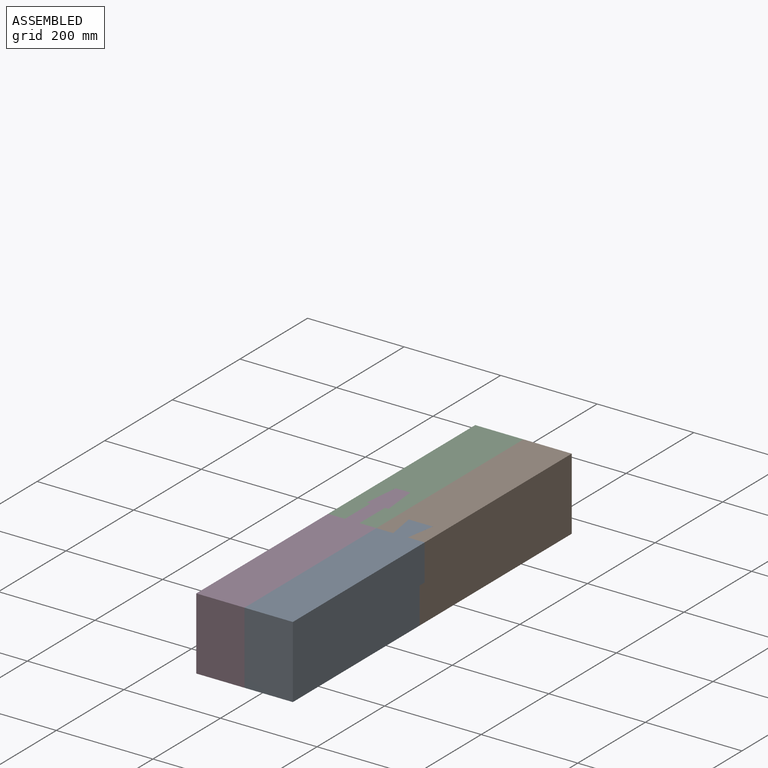
[diagram: assembled view]
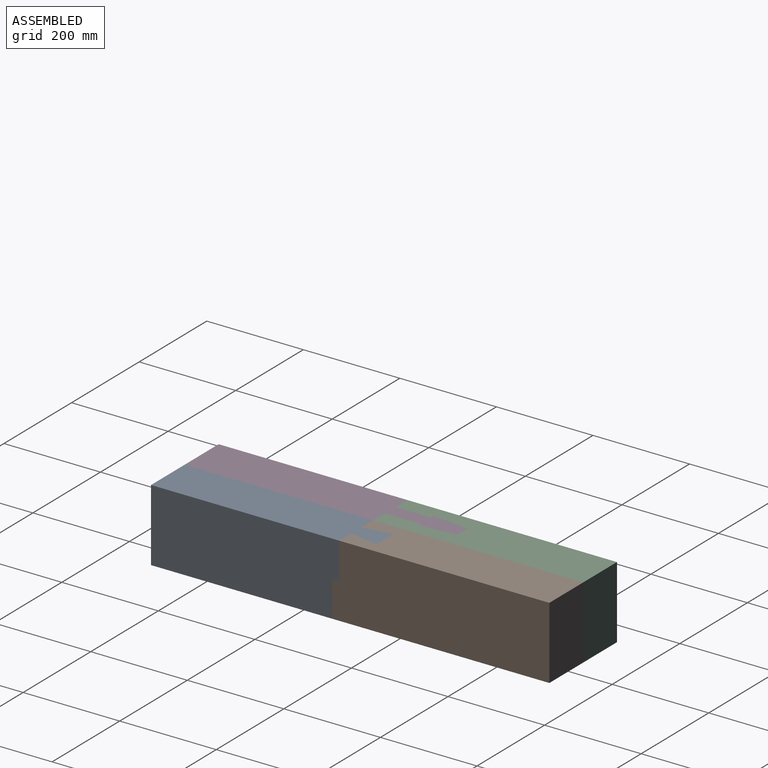
[diagram: assembled view, second angle]
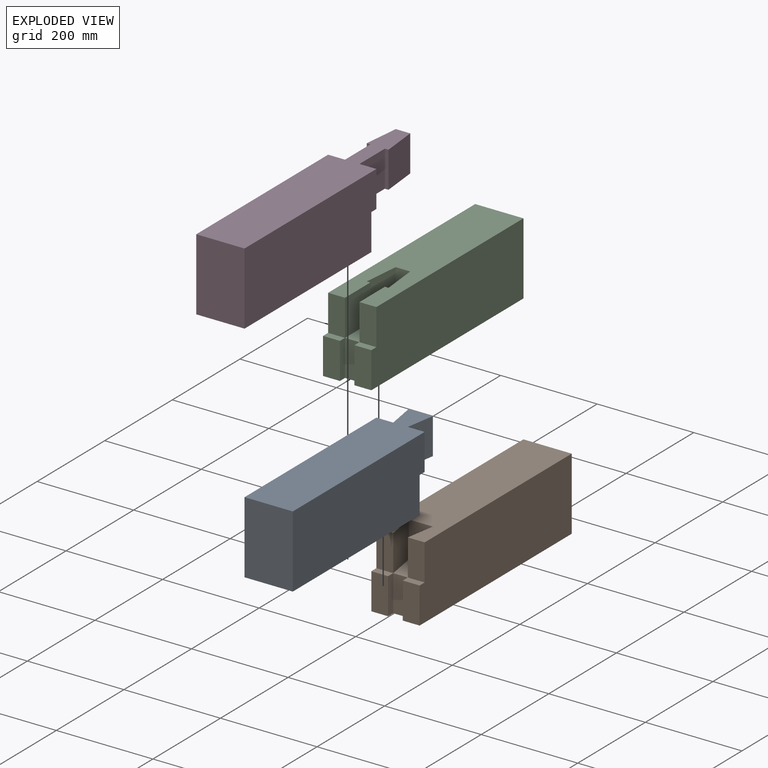
[diagram: exploded view]
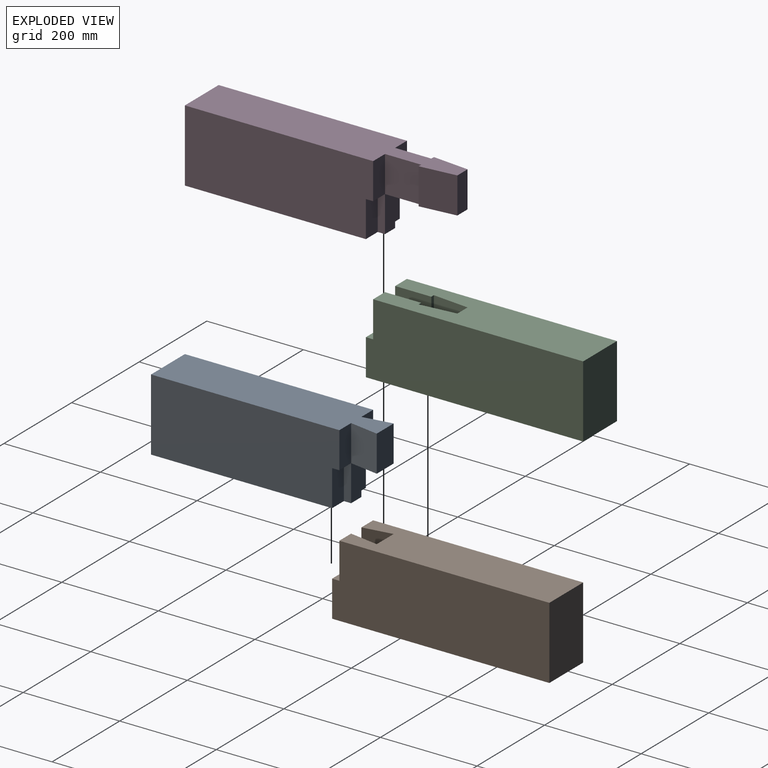
[diagram: exploded view, second angle]
ASSEMBLY  parts=4 mates=3
PART A: 18 faces, bbox 100x450x150 mm
  f0: plane 390x150mm, normal (1,0,0), area 57375mm2, adj f3,f4,f5,f10,f11,f12
  f1: plane 390x150mm, normal (-1,0,0), area 57375mm2, adj f3,f4,f5,f6,f7,f9
  f2: plane 75x50mm, normal (0,1,0), area 3750mm2, adj f3,f8,f13,f14
  f3: plane 450x100mm, normal (0,0,1), area 41411.9mm2, adj f0,f1,f2,f5,f9,f12,f13,f14
  f4: plane 390x100mm, normal (0,0,-1), area 37956mm2, adj f0,f1,f5,f6,f10,f15,f16,f17
  f5: plane 150x100mm, normal (0,-1,0), area 15000mm2, adj f0,f1,f3,f4
  f6: plane 75x34.8mm, normal (0,1,0), area 2610.1mm2, adj f1,f4,f7,f16
  f7: plane 34.8x15mm, normal (0,0,-1), area 522mm2, adj f1,f6,f9,f16
  f8: plane 60x50mm, normal (0,0,-1), area 2411.9mm2, adj f2,f13,f14,f15
  f9: plane 75x34.8mm, normal (0,1,0), area 2610.1mm2, adj f1,f3,f7,f13
  f10: plane 75x34.8mm, normal (0,1,0), area 2610.1mm2, adj f0,f4,f11,f17
  f11: plane 34.8x15mm, normal (0,0,-1), area 522mm2, adj f0,f10,f12,f17
  f12: plane 75x34.8mm, normal (0,1,0), area 2610.1mm2, adj f0,f3,f11,f14
  f13: plane 75x60mm, normal (-0.99,-0.16,0), area 4559.6mm2, adj f2,f3,f8,f9
  f14: plane 75x60mm, normal (0.99,-0.16,0), area 4559.6mm2, adj f2,f3,f8,f12
  f15: plane 75x30.4mm, normal (0,1,0), area 2279.8mm2, adj f4,f8,f16,f17
  f16: plane 75x15mm, normal (-1,0,0), area 1125mm2, adj f4,f6,f7,f15
  f17: plane 75x15mm, normal (1,0,0), area 1125mm2, adj f4,f10,f11,f15
PART B: 18 faces, bbox 100x450x150 mm
  f0: plane 75x34.8mm, normal (0,-1,0), area 2610.1mm2, adj f1,f3,f6,f16
  f1: plane 34.8x15mm, normal (0,0,1), area 522mm2, adj f0,f4,f6,f16
  f2: plane 60x50mm, normal (0,0,1), area 2411.9mm2, adj f12,f13,f14,f15
  f3: plane 450x100mm, normal (0,0,-1), area 44544mm2, adj f0,f6,f7,f8,f9,f15,f16,f17
  f4: plane 75x34.8mm, normal (0,-1,0), area 2610.1mm2, adj f1,f5,f6,f12
  f5: plane 435x100mm, normal (0,0,1), area 41088.1mm2, adj f4,f6,f7,f8,f11,f12,f13,f14
  f6: plane 450x150mm, normal (-1,0,0), area 66375mm2, adj f0,f1,f3,f4,f5,f8
  f7: plane 450x150mm, normal (1,0,0), area 66375mm2, adj f3,f5,f8,f9,f10,f11
  f8: plane 150x100mm, normal (0,1,0), area 15000mm2, adj f3,f5,f6,f7
  f9: plane 75x34.8mm, normal (0,-1,0), area 2610.1mm2, adj f3,f7,f10,f17
  f10: plane 34.8x15mm, normal (0,0,1), area 522mm2, adj f7,f9,f11,f17
  f11: plane 75x34.8mm, normal (0,-1,0), area 2610.1mm2, adj f5,f7,f10,f13
  f12: plane 75x60mm, normal (0.99,0.16,0), area 4559.6mm2, adj f2,f4,f5,f14
  f13: plane 75x60mm, normal (-0.99,0.16,0), area 4559.6mm2, adj f2,f5,f11,f14
  f14: plane 75x50mm, normal (0,-1,0), area 3750mm2, adj f2,f5,f12,f13
  f15: plane 75x30.4mm, normal (0,-1,0), area 2279.8mm2, adj f2,f3,f16,f17
  f16: plane 75x15mm, normal (1,0,0), area 1125mm2, adj f0,f1,f3,f15
  f17: plane 75x15mm, normal (-1,0,0), area 1125mm2, adj f3,f9,f10,f15
PART C: 22 faces, bbox 100x450x150 mm
  f0: plane 75x35mm, normal (0,-1,0), area 2625mm2, adj f1,f5,f18,f21
  f1: plane 450x100mm, normal (0,0,-1), area 44550mm2, adj f0,f4,f5,f7,f8,f19,f20,f21
  f2: plane 35x15mm, normal (0,0,1), area 525mm2, adj f4,f7,f14,f20
  f3: plane 150x45.15mm, normal (0,0,1), area 5073.7mm2, adj f9,f10,f11,f12,f15,f16,f17,f19
  f4: plane 450x150mm, normal (1,0,0), area 66375mm2, adj f1,f2,f6,f7,f8,f14
  f5: plane 450x150mm, normal (-1,0,0), area 66375mm2, adj f0,f1,f6,f8,f13,f18
  f6: plane 435x100mm, normal (0,0,1), area 38426.3mm2, adj f4,f5,f8,f9,f10,f11,f12,f13
  f7: plane 75x35mm, normal (0,-1,0), area 2625mm2, adj f1,f2,f4,f20
  f8: plane 150x100mm, normal (0,1,0), area 15000mm2, adj f1,f4,f5,f6
  f9: plane 75x30.15mm, normal (0,-1,0), area 2261.2mm2, adj f3,f6,f10,f17
  f10: plane 75x75mm, normal (1,-0.1,0), area 5653.1mm2, adj f3,f6,f9,f11
  f11: plane 75x7.58mm, normal (0,1,0), area 568.1mm2, adj f3,f6,f10,f12
  f12: plane 75x75mm, normal (1,0,0), area 5625mm2, adj f3,f6,f11,f13
  f13: plane 75x35mm, normal (0,-1,0), area 2625mm2, adj f5,f6,f12,f18
  f14: plane 75x35mm, normal (0,-1,0), area 2625mm2, adj f2,f4,f6,f15
  f15: plane 75x75mm, normal (-1,0,0), area 5625mm2, adj f3,f6,f14,f16
  f16: plane 75x7.58mm, normal (0,1,0), area 568.1mm2, adj f3,f6,f15,f17
  f17: plane 75x75mm, normal (-1,-0.1,0), area 5653.1mm2, adj f3,f6,f9,f16
  f18: plane 35x15mm, normal (0,0,1), area 525mm2, adj f0,f5,f13,f21
  f19: plane 75x30mm, normal (0,-1,0), area 2250mm2, adj f1,f3,f20,f21
  f20: plane 75x15mm, normal (-1,0,0), area 1125mm2, adj f1,f2,f7,f19
  f21: plane 75x15mm, normal (1,0,0), area 1125mm2, adj f0,f1,f18,f19
PART D: 22 faces, bbox 100x540x150 mm
  f0: plane 540x100mm, normal (0,0,1), area 44073.7mm2, adj f1,f2,f4,f5,f10,f11,f12,f13
  f1: plane 390x150mm, normal (1,0,0), area 57375mm2, adj f0,f3,f4,f7,f9,f14
  f2: plane 390x150mm, normal (-1,0,0), area 57375mm2, adj f0,f3,f4,f6,f13,f18
  f3: plane 390x100mm, normal (0,0,-1), area 37950mm2, adj f1,f2,f4,f6,f9,f19,f20,f21
  f4: plane 150x100mm, normal (0,-1,0), area 15000mm2, adj f0,f1,f2,f3
  f5: plane 75x30.15mm, normal (0,1,0), area 2261.2mm2, adj f0,f8,f10,f17
  f6: plane 75x35mm, normal (0,1,0), area 2625mm2, adj f2,f3,f18,f21
  f7: plane 35x15mm, normal (0,0,-1), area 525mm2, adj f1,f9,f14,f20
  f8: plane 150x45.15mm, normal (0,0,-1), area 5073.7mm2, adj f5,f10,f11,f12,f15,f16,f17,f19
  f9: plane 75x35mm, normal (0,1,0), area 2625mm2, adj f1,f3,f7,f20
  f10: plane 75x75mm, normal (-1,0.1,0), area 5653.1mm2, adj f0,f5,f8,f11
  f11: plane 75x7.58mm, normal (0,-1,0), area 568.1mm2, adj f0,f8,f10,f12
  f12: plane 75x75mm, normal (-1,0,0), area 5625mm2, adj f0,f8,f11,f13
  f13: plane 75x35mm, normal (0,1,0), area 2625mm2, adj f0,f2,f12,f18
  f14: plane 75x35mm, normal (0,1,0), area 2625mm2, adj f0,f1,f7,f15
  f15: plane 75x75mm, normal (1,0,0), area 5625mm2, adj f0,f8,f14,f16
  f16: plane 75x7.58mm, normal (0,-1,0), area 568.1mm2, adj f0,f8,f15,f17
  f17: plane 75x75mm, normal (1,0.1,0), area 5653.1mm2, adj f0,f5,f8,f16
  f18: plane 35x15mm, normal (0,0,-1), area 525mm2, adj f2,f6,f13,f21
  f19: plane 75x30mm, normal (0,1,0), area 2250mm2, adj f3,f8,f20,f21
  f20: plane 75x15mm, normal (1,0,0), area 1125mm2, adj f3,f7,f9,f19
  f21: plane 75x15mm, normal (-1,0,0), area 1125mm2, adj f3,f6,f18,f19
PLACE A t=(29.49,-124.44,125.3)mm
PLACE B t=(29.49,-124.44,125.3)mm fixed
PLACE C t=(-70.51,850.56,125.3)mm
PLACE D t=(-70.51,850.56,125.3)mm
MATE fastened B.f2 <-> C.f3  axis (0,0,-1) through (-20.51,325.56,125.3)mm
MATE slider C.f3 <-> D.f8  axis (0,0,1) through (-70.51,-31.58,125.3)mm
MATE slider B.f2 <-> A.f8  axis (0,0,1) through (29.49,-77,125.3)mm
